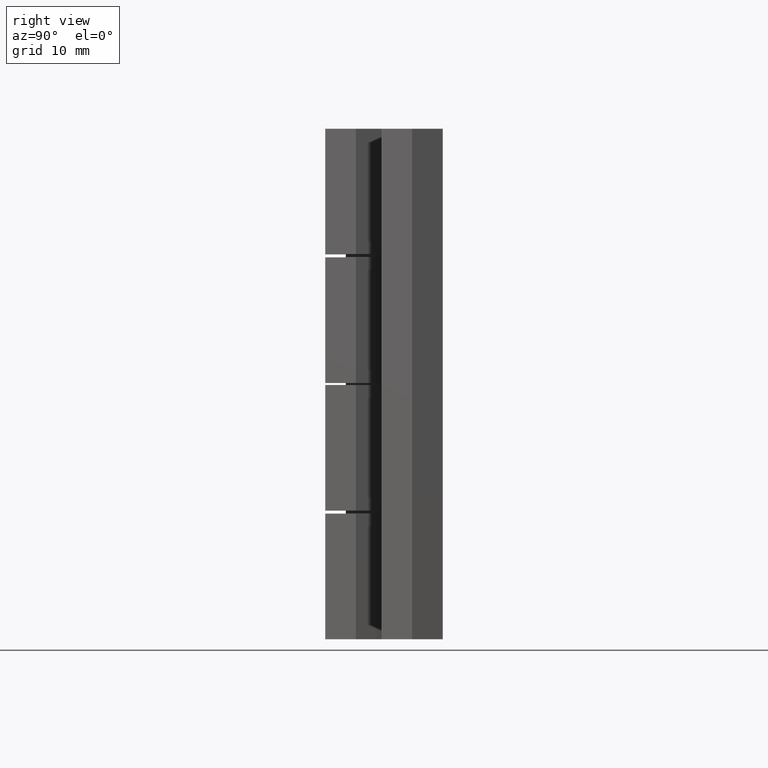
[diagram: clean part render]
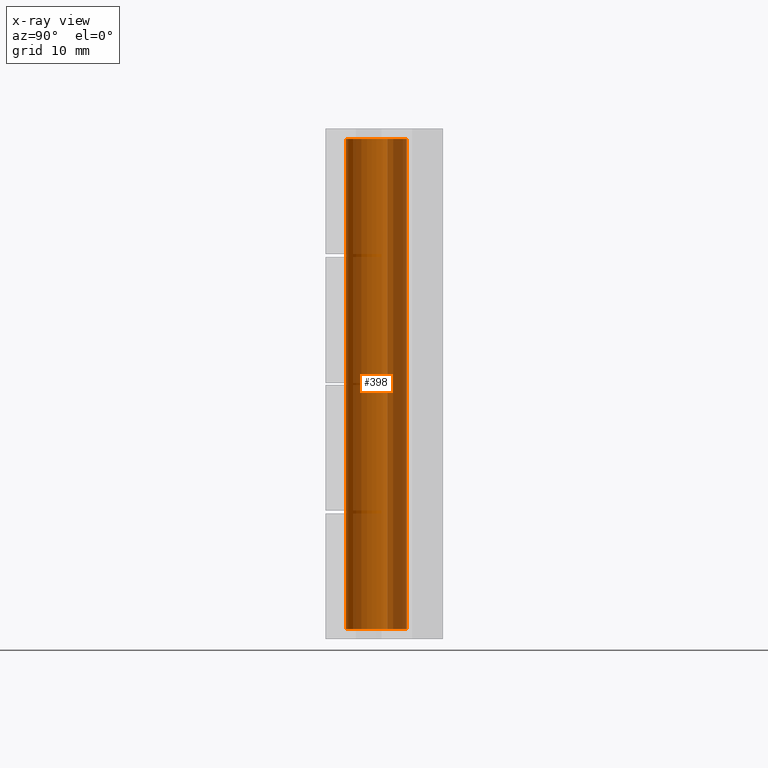
[diagram: x-ray — body ghosted, one internal face saturated and labeled with its STEP entity id]
A machine part, right view, then the same camera in x-ray: the body is ghosted and one INTERNAL B-rep face — a face not visible from any outside direction — is saturated and labeled: STEP entity #398.
In plain terms, the highlighted face is a freeform B-spline surface patch.
Its self-contained STEP definition (entity closure, byte-faithful):
#62=CARTESIAN_POINT('',(-3.000000142492395,0.0,0.999999335035881));
#63=VERTEX_POINT('',#62);
#64=CARTESIAN_POINT('',(-0.235377298373483,2.990752143253058,0.999999335037209));
#65=VERTEX_POINT('',#64);
#66=CARTESIAN_POINT('',(-3.000000142492395,0.0,0.999999335035881));
#67=CARTESIAN_POINT('',(-3.000000142492395,2.773171606674601,0.999999335035881));
#68=CARTESIAN_POINT('',(-0.235377298373483,2.990752143253058,0.999999335037209));
#76=(BOUNDED_CURVE()B_SPLINE_CURVE(2,(#66,#67,#68),.UNSPECIFIED.,.F.,.U.)B_SPLINE_CURVE_WITH_KNOTS((3,3),(0.0,0.236331300631619),.UNSPECIFIED.)CURVE()GEOMETRIC_REPRESENTATION_ITEM()RATIONAL_B_SPLINE_CURVE((1.0,0.723120658606542,0.969723356169419))REPRESENTATION_ITEM(''));
#77=EDGE_CURVE('',#63,#65,#76,.T.);
#125=CARTESIAN_POINT('',(0.183145627328883,-2.994404537490667,0.999999335035880));
#126=VERTEX_POINT('',#125);
#140=CARTESIAN_POINT('',(0.183145627328883,-2.994404537490668,0.999999335035880));
#141=CARTESIAN_POINT('',(0.091658294274734,-3.000000142492396,0.999999335035881));
#142=CARTESIAN_POINT('',(0.0,-3.000000142492395,0.999999335035881));
#143=CARTESIAN_POINT('',(-3.000000142492395,-3.000000142492395,0.999999335035881));
#144=CARTESIAN_POINT('',(-3.000000142492395,0.0,0.999999335035881));
#152=(BOUNDED_CURVE()B_SPLINE_CURVE(2,(#140,#141,#142,#143,#144),.UNSPECIFIED.,.F.,.U.)B_SPLINE_CURVE_WITH_KNOTS((3,2,3),(0.739332962239046,0.750000000000000,1.0),.UNSPECIFIED.)CURVE()GEOMETRIC_REPRESENTATION_ITEM()RATIONAL_B_SPLINE_CURVE((0.976072041666938,0.987502787899958,1.0,0.707106781186547,1.0))REPRESENTATION_ITEM(''));
#153=EDGE_CURVE('',#126,#63,#152,.T.);
#176=CARTESIAN_POINT('',(2.808430869712900,1.054853973305328,0.999999335035880));
#177=VERTEX_POINT('',#176);
#178=CARTESIAN_POINT('',(-0.235377298373483,2.990752143253058,0.999999335037209));
#179=CARTESIAN_POINT('',(-0.117870326631615,3.000000142492395,0.999999335035881));
#180=CARTESIAN_POINT('',(0.0,3.000000142492395,0.999999335035881));
#181=CARTESIAN_POINT('',(2.077828885731037,3.000000142492396,0.999999335035881));
#182=CARTESIAN_POINT('',(2.808430869712900,1.054853973305328,0.999999335035880));
#190=(BOUNDED_CURVE()B_SPLINE_CURVE(2,(#178,#179,#180,#181,#182),.UNSPECIFIED.,.F.,.U.)B_SPLINE_CURVE_WITH_KNOTS((3,2,3),(0.236331300631618,0.250000000000000,0.440284170895791),.UNSPECIFIED.)CURVE()GEOMETRIC_REPRESENTATION_ITEM()RATIONAL_B_SPLINE_CURVE((0.969723356169419,0.983986122580005,1.0,0.777068226788331,0.893499554631949))REPRESENTATION_ITEM(''));
#191=EDGE_CURVE('',#65,#177,#190,.T.);
#274=CARTESIAN_POINT('',(2.808430869714127,1.054853973302060,49.000002327374993));
#275=VERTEX_POINT('',#274);
#291=CARTESIAN_POINT('',(0.183145627346356,-2.994404537495286,49.000002327363653));
#292=VERTEX_POINT('',#291);
#306=CARTESIAN_POINT('',(0.183145627346356,-2.994404537495286,49.000002327363653));
#307=CARTESIAN_POINT('',(0.183145627328883,-2.994404537490667,0.999999335035880));
#308=QUASI_UNIFORM_CURVE('',1,(#306,#307),.UNSPECIFIED.,.F.,.U.);
#309=EDGE_CURVE('',#292,#126,#308,.T.);
#314=CARTESIAN_POINT('',(2.808430869714127,1.054853973302060,49.000002327374993));
#315=CARTESIAN_POINT('',(2.808430869712900,1.054853973305328,0.999999335035880));
#316=QUASI_UNIFORM_CURVE('',1,(#314,#315),.UNSPECIFIED.,.F.,.U.);
#317=EDGE_CURVE('',#275,#177,#316,.T.);
#322=CARTESIAN_POINT('',(0.183145627303523,-2.994404537492218,50.200002402183479));
#323=CARTESIAN_POINT('',(-2.811258910188696,-3.177550164795743,50.200002402183486));
#324=CARTESIAN_POINT('',(-2.994404537492218,-0.183145627303523,50.200002402183479));
#325=CARTESIAN_POINT('',(-3.177550164795743,2.811258910188696,50.200002402183486));
#326=CARTESIAN_POINT('',(-0.183145627303523,2.994404537492218,50.200002402183479));
#327=CARTESIAN_POINT('',(2.029108841786718,3.129711817261396,50.200002402183486));
#328=CARTESIAN_POINT('',(2.808430869723312,1.054853973277604,50.200002402183465));
#329=CARTESIAN_POINT('',(0.183145627303523,-2.994404537492218,-0.230000741642812));
#330=CARTESIAN_POINT('',(-2.811258910188696,-3.177550164795743,-0.230000741642812));
#331=CARTESIAN_POINT('',(-2.994404537492218,-0.183145627303523,-0.230000741642812));
#332=CARTESIAN_POINT('',(-3.177550164795743,2.811258910188696,-0.230000741642812));
#333=CARTESIAN_POINT('',(-0.183145627303523,2.994404537492218,-0.230000741642812));
#334=CARTESIAN_POINT('',(2.029108841786718,3.129711817261396,-0.230000741642812));
#335=CARTESIAN_POINT('',(2.808430869723312,1.054853973277604,-0.230000741642812));
#343=(BOUNDED_SURFACE()B_SPLINE_SURFACE(2,1,((#322,#329),(#323,#330),(#324,#331),(#325,#332),(#326,#333),(#327,#334),(#328,#335)),.UNSPECIFIED.,.F.,.F.,.U.)B_SPLINE_SURFACE_WITH_KNOTS((3,2,2,3),(2,2),(0.0,4.970562984566270,9.941125969132539,13.917576356785551),(0.0,50.430003143826291),.UNSPECIFIED.)GEOMETRIC_REPRESENTATION_ITEM()RATIONAL_B_SPLINE_SURFACE(((1.0,1.0),(0.707106781186548,0.707106781186548),(1.0,1.0),(0.707106781186548,0.707106781186548),(1.0,1.0),(0.765685424949238,0.765685424949238),(0.906274169979695,0.906274169979695)))REPRESENTATION_ITEM('')SURFACE());
#344=CARTESIAN_POINT('',(-0.354102721159891,2.979028720590330,49.000002327328247));
#345=VERTEX_POINT('',#344);
#346=CARTESIAN_POINT('',(-0.354102721159891,2.979028720590331,49.000002327328247));
#347=CARTESIAN_POINT('',(-0.177672367763693,3.000000142492396,49.000002327375000));
#348=CARTESIAN_POINT('',(0.0,3.000000142492395,49.000002327374993));
#349=CARTESIAN_POINT('',(2.077828885736195,3.000000142492395,49.000002327374993));
#350=CARTESIAN_POINT('',(2.808430869714127,1.054853973302060,49.000002327374986));
#358=(BOUNDED_CURVE()B_SPLINE_CURVE(2,(#346,#347,#348,#349,#350),.UNSPECIFIED.,.F.,.U.)B_SPLINE_CURVE_WITH_KNOTS((3,2,3),(0.229562473474217,0.250000000000000,0.440284170896158),.UNSPECIFIED.)CURVE()GEOMETRIC_REPRESENTATION_ITEM()RATIONAL_B_SPLINE_CURVE((0.956026754106688,0.976055948285113,1.0,0.777068226787901,0.893499554632399))REPRESENTATION_ITEM(''));
#359=EDGE_CURVE('',#345,#275,#358,.T.);
#360=ORIENTED_EDGE('',*,*,#359,.T.);
#361=ORIENTED_EDGE('',*,*,#317,.T.);
#362=ORIENTED_EDGE('',*,*,#191,.F.);
#363=ORIENTED_EDGE('',*,*,#77,.F.);
#364=ORIENTED_EDGE('',*,*,#153,.F.);
#365=ORIENTED_EDGE('',*,*,#309,.F.);
#366=CARTESIAN_POINT('',(-3.000000142492395,0.0,49.000002327374993));
#367=VERTEX_POINT('',#366);
#368=CARTESIAN_POINT('',(0.183145627346356,-2.994404537495286,49.000002327363646));
#369=CARTESIAN_POINT('',(0.091658294334512,-3.000000142492395,49.000002327374993));
#370=CARTESIAN_POINT('',(0.0,-3.000000142492395,49.000002327374993));
#371=CARTESIAN_POINT('',(-3.000000142492395,-3.000000142492395,49.000002327374993));
#372=CARTESIAN_POINT('',(-3.000000142492395,0.0,49.000002327374993));
#380=(BOUNDED_CURVE()B_SPLINE_CURVE(2,(#368,#369,#370,#371,#372),.UNSPECIFIED.,.F.,.U.)B_SPLINE_CURVE_WITH_KNOTS((3,2,3),(0.739332962232176,0.750000000000000,1.0),.UNSPECIFIED.)CURVE()GEOMETRIC_REPRESENTATION_ITEM()RATIONAL_B_SPLINE_CURVE((0.976072041652214,0.987502787891909,1.0,0.707106781186547,1.0))REPRESENTATION_ITEM(''));
#381=EDGE_CURVE('',#292,#367,#380,.T.);
#382=ORIENTED_EDGE('',*,*,#381,.T.);
#383=CARTESIAN_POINT('',(-3.000000142492395,0.0,49.000002327374993));
#384=CARTESIAN_POINT('',(-3.000000142492395,2.664523703754480,49.000002327374993));
#385=CARTESIAN_POINT('',(-0.354102721159891,2.979028720590331,49.000002327328247));
#393=(BOUNDED_CURVE()B_SPLINE_CURVE(2,(#383,#384,#385),.UNSPECIFIED.,.F.,.U.)B_SPLINE_CURVE_WITH_KNOTS((3,3),(0.0,0.229562473474217),.UNSPECIFIED.)CURVE()GEOMETRIC_REPRESENTATION_ITEM()RATIONAL_B_SPLINE_CURVE((1.0,0.731050832901435,0.956026754106688))REPRESENTATION_ITEM(''));
#394=EDGE_CURVE('',#367,#345,#393,.T.);
#395=ORIENTED_EDGE('',*,*,#394,.T.);
#396=EDGE_LOOP('',(#360,#361,#362,#363,#364,#365,#382,#395));
#397=FACE_OUTER_BOUND('',#396,.T.);
#398=ADVANCED_FACE('',(#397),#343,.T.);